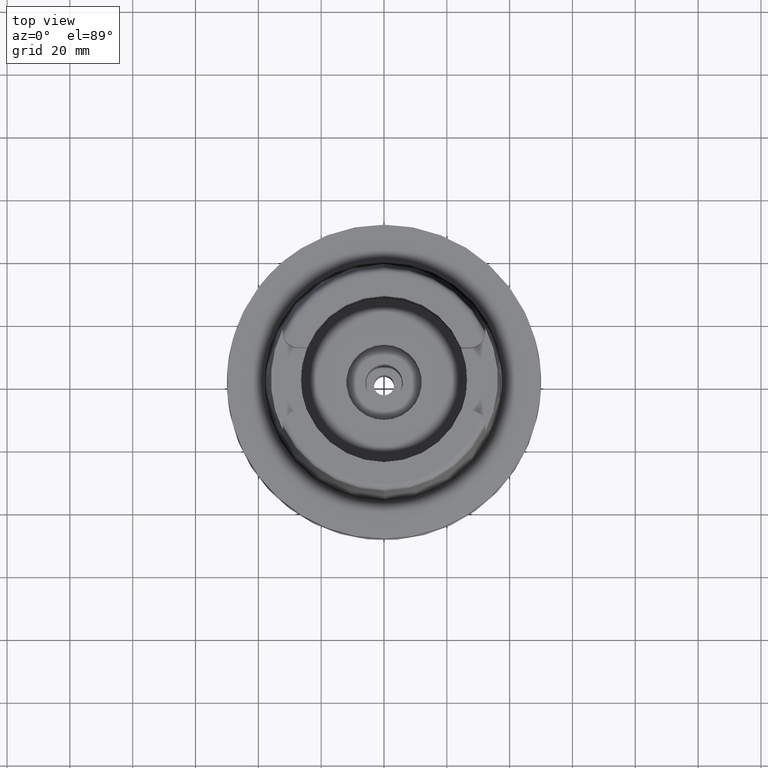
[diagram: clean part render]
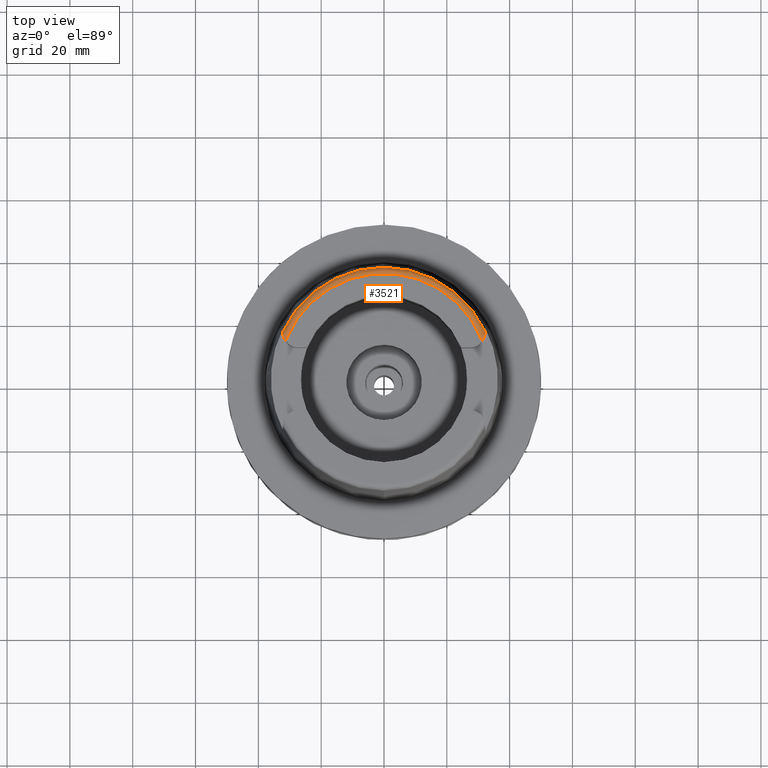
[diagram: same view with one face highlighted and labeled with its STEP entity id]
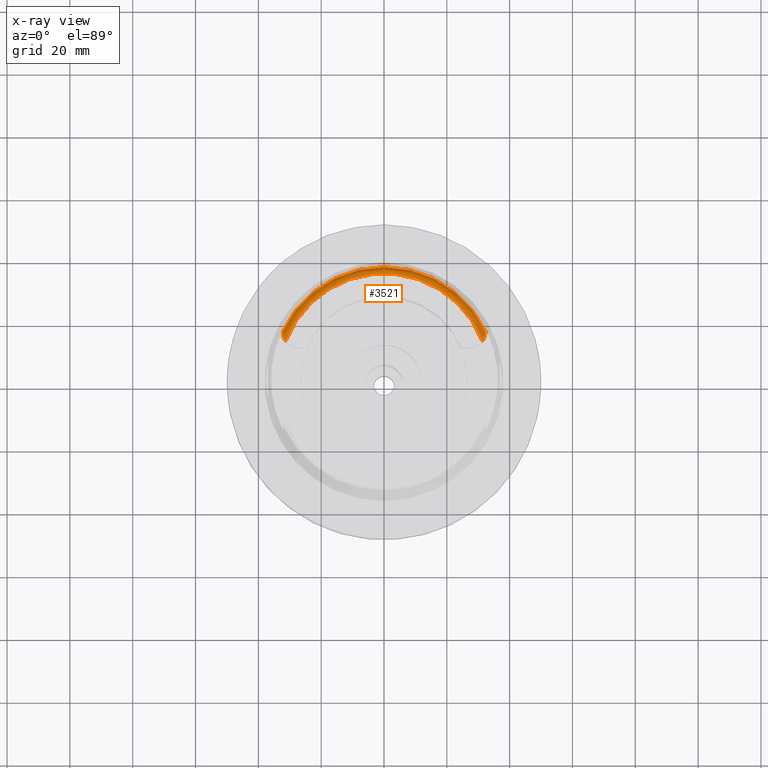
[diagram: x-ray of the same camera — body ghosted, the highlighted face saturated]
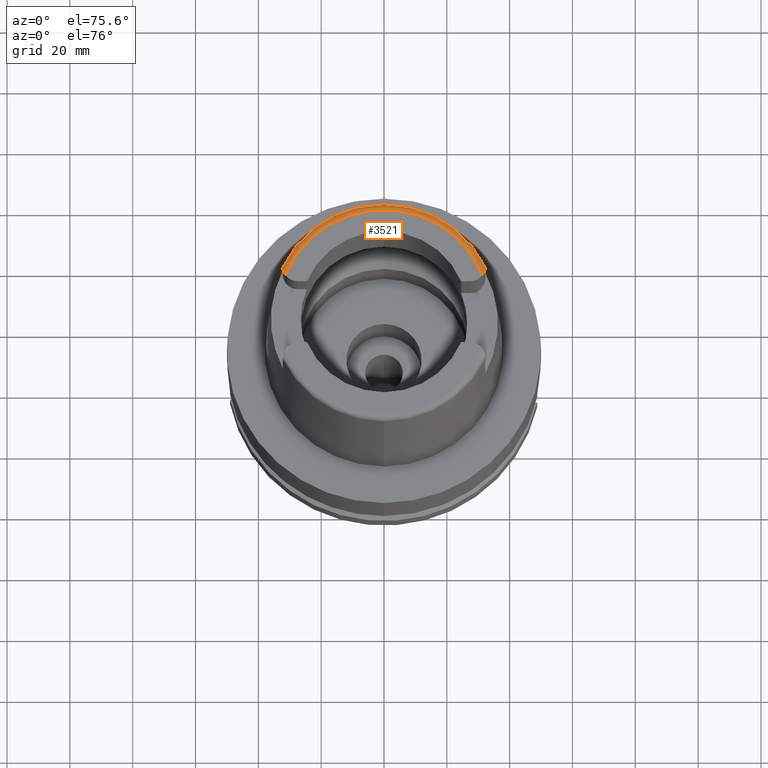
[diagram: same view with one face highlighted and labeled with its STEP entity id]
A machine part, top view. The second image highlights one B-rep face of the part: STEP entity #3521.
The next image is the same camera in x-ray: the body ghosted, the highlighted face saturated — about 0% of this face is hidden behind the body in this view.
A second angle (auxiliary view) of the same face is appended — the face is thin or edge-on in the first view.
In plain terms, the highlighted toroidal blend (fillet) surface has major radius 33.5974 mm and minor (blend) radius 2 mm.
Its self-contained STEP definition (entity closure, byte-faithful):
#14 = CARTESIAN_POINT ( 'NONE',  ( 32.15017720449324656, 13.90751976771936782, 49.39676178602020684 ) ) ;
#40 = DIRECTION ( 'NONE',  ( 0.0000000000000000000, 0.0000000000000000000, -1.000000000000000000 ) ) ;
#95 = CARTESIAN_POINT ( 'NONE',  ( 32.24916103442960491, 14.77253395964151927, 48.70381746494810926 ) ) ;
#115 = CARTESIAN_POINT ( 'NONE',  ( -32.25000136840999687, 15.06443227475000057, 48.09991928346000378 ) ) ;
#156 = CARTESIAN_POINT ( 'NONE',  ( -32.22448865000264107, 14.39095980605708114, 49.06284178539175400 ) ) ;
#242 = CARTESIAN_POINT ( 'NONE',  ( -32.09777971927447027, 13.68052568832561100, 49.52495681024776530 ) ) ;
#413 = CARTESIAN_POINT ( 'NONE',  ( 32.20669148451036534, 14.23088006493673774, 49.18704784447752587 ) ) ;
#443 = CARTESIAN_POINT ( 'NONE',  ( 32.16832596347117601, 13.99875704715564773, 49.34121435958346780 ) ) ;
#492 = CARTESIAN_POINT ( 'NONE',  ( 32.21993036972644120, 14.33954684682620950, 49.10608170110517534 ) ) ;
#576 = CARTESIAN_POINT ( 'NONE',  ( -32.14588499017791889, 13.87874634931243811, 49.41605215450951505 ) ) ;
#625 = CARTESIAN_POINT ( 'NONE',  ( 32.12274057746510891, 13.78269737179117449, 49.46904536526865570 ) ) ;
#627 = CARTESIAN_POINT ( 'NONE',  ( -31.84734691394621464, 12.94726093084390683, 49.84228404415687663 ) ) ;
#759 = B_SPLINE_CURVE_WITH_KNOTS ( 'NONE', 3,
 ( #3981, #1842, #2266, #115 ),
 .UNSPECIFIED., .F., .F.,
 ( 4, 4 ),
 ( 0.0000000000000000000, 1.000000000000000000 ),
 .UNSPECIFIED. ) ;
#818 = ORIENTED_EDGE ( 'NONE', *, *, #1297, .F. ) ;
#892 = CARTESIAN_POINT ( 'NONE',  ( 0.0000000000000000000, 0.0000000000000000000, 50.00000000000000000 ) ) ;
#1000 = CARTESIAN_POINT ( 'NONE',  ( 32.11939418327478535, 13.76840275363858268, 49.47705317395351443 ) ) ;
#1005 = CARTESIAN_POINT ( 'NONE',  ( -32.25000136840999687, 15.06443227475000057, 48.09991928346000378 ) ) ;
#1024 = CARTESIAN_POINT ( 'NONE',  ( -32.21878722870468437, 14.33830843859515447, 49.10428175090957836 ) ) ;
#1055 = CARTESIAN_POINT ( 'NONE',  ( -32.10664234831729402, 13.71571364279806637, 49.50604449910613170 ) ) ;
#1066 = VERTEX_POINT ( 'NONE', #3856 ) ;
#1080 = CARTESIAN_POINT ( 'NONE',  ( -31.98608371368483816, 13.30679759932256623, 49.70456327665627327 ) ) ;
#1104 = CARTESIAN_POINT ( 'NONE',  ( -32.04996175303573835, 13.50367662822789860, 49.61586521801842764 ) ) ;
#1195 = AXIS2_PLACEMENT_3D ( 'NONE', #5172, #4694, #3391 ) ;
#1278 = CARTESIAN_POINT ( 'NONE',  ( 32.17890963888950040, 14.05801803728754429, 49.30331987844354558 ) ) ;
#1297 = EDGE_CURVE ( 'NONE', #3736, #3889, #4362, .T. ) ;
#1318 = AXIS2_PLACEMENT_3D ( 'NONE', #1600, #2098, #4220 ) ;
#1345 = EDGE_CURVE ( 'NONE', #2486, #1066, #2220, .T. ) ;
#1377 = TOROIDAL_SURFACE ( 'NONE', #1195, 33.59743838135999994, 2.000000000000000000 ) ;
#1448 = CARTESIAN_POINT ( 'NONE',  ( 32.07040011085826592, 13.57460039597133594, 49.58093307470007716 ) ) ;
#1450 = CARTESIAN_POINT ( 'NONE',  ( -32.25000000000000711, 14.78351991466574944, 48.70328559115783662 ) ) ;
#1476 = CARTESIAN_POINT ( 'NONE',  ( -31.52519813468604326, 12.31381119535605428, 50.00000000000002842 ) ) ;
#1485 = CIRCLE ( 'NONE', #4191, 35.59494289391000166 ) ;
#1531 = CARTESIAN_POINT ( 'NONE',  ( 32.00398671331425504, 13.35999235542739427, 49.68128246879137322 ) ) ;
#1574 = CARTESIAN_POINT ( 'NONE',  ( 32.25000000000000000, 15.04645007517336630, 48.25212983203287109 ) ) ;
#1600 = CARTESIAN_POINT ( 'NONE',  ( 0.0000000000000000000, 0.0000000000000000000, 48.09987853799000135 ) ) ;
#1701 = FACE_OUTER_BOUND ( 'NONE', #5275, .T. ) ;
#1736 = CARTESIAN_POINT ( 'NONE',  ( 32.14053432310057445, 13.86131506583278217, 49.42421192542029473 ) ) ;
#1842 = CARTESIAN_POINT ( 'NONE',  ( -32.25000000000000000, 14.98831011539436275, 48.40078052529398889 ) ) ;
#1846 = CARTESIAN_POINT ( 'NONE',  ( 32.01568327388960711, 13.39588381632287195, 49.66516246172209748 ) ) ;
#1853 = ORIENTED_EDGE ( 'NONE', *, *, #3958, .F. ) ;
#1878 = CARTESIAN_POINT ( 'NONE',  ( -32.24707187857641344, 14.63389837967115170, 48.86153619287532734 ) ) ;
#2033 = AXIS2_PLACEMENT_3D ( 'NONE', #892, #40, #3085 ) ;
#2098 = DIRECTION ( 'NONE',  ( 0.0000000000000000000, 0.0000000000000000000, -1.000000000000000000 ) ) ;
#2220 = CIRCLE ( 'NONE', #1318, 35.59494289391000166 ) ;
#2257 = CARTESIAN_POINT ( 'NONE',  ( -31.35385269249000473, 12.07161079256999869, 50.00000000000000000 ) ) ;
#2266 = CARTESIAN_POINT ( 'NONE',  ( -32.25000000000000000, 15.04645420697769431, 48.25208730704065374 ) ) ;
#2272 = CARTESIAN_POINT ( 'NONE',  ( -31.97902504986931760, 13.28634825390971841, 49.71331469848107076 ) ) ;
#2299 = CARTESIAN_POINT ( 'NONE',  ( -32.19753087073275566, 14.17392538189759854, 49.22534626495601628 ) ) ;
#2379 = CARTESIAN_POINT ( 'NONE',  ( -32.20547308974386880, 14.22999839403326838, 49.18564250344191890 ) ) ;
#2424 = CARTESIAN_POINT ( 'NONE',  ( 32.25000000000000000, 14.89000000000000057, 48.54599893821999501 ) ) ;
#2486 = VERTEX_POINT ( 'NONE', #1005 ) ;
#2605 = ORIENTED_EDGE ( 'NONE', *, *, #1345, .F. ) ;
#2678 = B_SPLINE_CURVE_WITH_KNOTS ( 'NONE', 3,
 ( #4854, #3491, #95, #3538, #5221, #3457, #4734, #5269, #2689, #492, #413, #1278, #443, #14, #1736, #5407, #625, #1000, #3252, #1448, #3223, #1846, #1531, #3617, #4877, #2769, #5353, #3167, #4900 ),
 .UNSPECIFIED., .F., .F.,
 ( 4, 2, 2, 2, 2, 2, 2, 1, 2, 2, 1, 1, 2, 2, 2, 4 ),
 ( 0.0000000000000000000, 0.1250000000000017208, 0.1875000000000060507, 0.2187500000000075495, 0.2500000000000089928, 0.3750000000000140443, 0.4375000000000161537, 0.4687500000000166533, 0.4843750000000175415, 0.5000000000000184297, 0.5625000000000220934, 0.5937500000000222045, 0.6093750000000224265, 0.6250000000000226485, 0.7500000000000155431, 1.000000000000000000 ),
 .UNSPECIFIED. ) ;
#2689 = CARTESIAN_POINT ( 'NONE',  ( 32.23166681622142704, 14.46662401802180398, 49.00055970431263574 ) ) ;
#2769 = CARTESIAN_POINT ( 'NONE',  ( 31.88014065795848850, 13.01950502716140079, 49.82005538784619603 ) ) ;
#2780 = CARTESIAN_POINT ( 'NONE',  ( 32.24997259532460703, 15.06456604366454854, 48.09965181409399548 ) ) ;
#2794 = CARTESIAN_POINT ( 'NONE',  ( -32.21567298039627048, 14.31155043656645098, 49.12478470816802201 ) ) ;
#2952 = VERTEX_POINT ( 'NONE', #4395 ) ;
#2958 = DIRECTION ( 'NONE',  ( 0.0000000000000000000, 1.000000000000000000, 0.0000000000000000000 ) ) ;
#2981 = EDGE_CURVE ( 'NONE', #3889, #2486, #759, .T. ) ;
#3010 = DIRECTION ( 'NONE',  ( 0.0000000000000000000, 0.0000000000000000000, -1.000000000000000000 ) ) ;
#3085 = DIRECTION ( 'NONE',  ( -0.9332215253017949186, 0.3593015233941980191, 0.0000000000000000000 ) ) ;
#3167 = CARTESIAN_POINT ( 'NONE',  ( 31.52507307882964582, 12.31363442626083149, 50.00000000000001421 ) ) ;
#3170 = CARTESIAN_POINT ( 'NONE',  ( -31.94497839944808604, 13.19092874366464940, 49.75292495902216672 ) ) ;
#3196 = CARTESIAN_POINT ( 'NONE',  ( -31.89458821769278174, 13.05862407527183144, 49.80433522532489121 ) ) ;
#3202 = CIRCLE ( 'NONE', #2033, 33.59743838135999994 ) ;
#3223 = CARTESIAN_POINT ( 'NONE',  ( 32.03286044953435407, 13.44965304002909434, 49.64063122353667268 ) ) ;
#3252 = CARTESIAN_POINT ( 'NONE',  ( 32.09833716051594621, 13.68068798269276698, 49.52554850186197655 ) ) ;
#3254 = CARTESIAN_POINT ( 'NONE',  ( -31.35385269249000473, 12.07161079256999869, 50.00000000000000000 ) ) ;
#3391 = DIRECTION ( 'NONE',  ( -0.0004184165975219878483, -0.9999999124637716230, 0.0000000000000000000 ) ) ;
#3457 = CARTESIAN_POINT ( 'NONE',  ( 32.23860582797592400, 14.55602964915842712, 48.92207617525394880 ) ) ;
#3491 = CARTESIAN_POINT ( 'NONE',  ( 32.25000000000000711, 14.83666302572071594, 48.62478544684702086 ) ) ;
#3521 = ADVANCED_FACE ( 'NONE', ( #1701 ), #1377, .T. ) ;
#3538 = CARTESIAN_POINT ( 'NONE',  ( 32.24473325681892533, 14.66026462506382266, 48.82273375631090317 ) ) ;
#3617 = CARTESIAN_POINT ( 'NONE',  ( 31.99843468176250738, 13.34326006148294219, 49.68868765479610516 ) ) ;
#3651 = ORIENTED_EDGE ( 'NONE', *, *, #4578, .T. ) ;
#3736 = VERTEX_POINT ( 'NONE', #2257 ) ;
#3856 = CARTESIAN_POINT ( 'NONE',  ( 0.0000000000000000000, 35.59494289391000166, 48.09987853799000135 ) ) ;
#3889 = VERTEX_POINT ( 'NONE', #4192 ) ;
#3952 = CARTESIAN_POINT ( 'NONE',  ( 31.35385269249000473, 12.07161079256999869, 50.00000000000000000 ) ) ;
#3954 = B_SPLINE_CURVE_WITH_KNOTS ( 'NONE', 3,
 ( #2780, #1574, #4609, #2424 ),
 .UNSPECIFIED., .F., .F.,
 ( 4, 4 ),
 ( 0.0000000000000000000, 1.000000000000000000 ),
 .UNSPECIFIED. ) ;
#3958 = EDGE_CURVE ( 'NONE', #5437, #4747, #2678, .T. ) ;
#3981 = CARTESIAN_POINT ( 'NONE',  ( -32.25000000000000000, 14.89000000000000057, 48.54599893821999501 ) ) ;
#4021 = CARTESIAN_POINT ( 'NONE',  ( -32.16972359007059623, 14.00077442389878257, 49.34185324349260782 ) ) ;
#4191 = AXIS2_PLACEMENT_3D ( 'NONE', #5174, #3010, #2958 ) ;
#4192 = CARTESIAN_POINT ( 'NONE',  ( -32.25000000000000000, 14.89000000000000057, 48.54599893821999501 ) ) ;
#4220 = DIRECTION ( 'NONE',  ( -0.9060276961631030801, 0.4232183996300014628, 0.0000000000000000000 ) ) ;
#4237 = ORIENTED_EDGE ( 'NONE', *, *, #5246, .F. ) ;
#4255 = ORIENTED_EDGE ( 'NONE', *, *, #2981, .F. ) ;
#4362 = B_SPLINE_CURVE_WITH_KNOTS ( 'NONE', 3,
 ( #3254, #1476, #4880, #627, #3196, #3170, #4903, #2272, #1080, #4937, #1104, #5332, #242, #1055, #4450, #576, #4021, #2299, #2379, #2794, #1024, #156, #4537, #1878, #1450, #4427 ),
 .UNSPECIFIED., .F., .F.,
 ( 4, 2, 1, 1, 2, 2, 1, 1, 2, 2, 2, 2, 2, 2, 4 ),
 ( 0.0000000000000000000, 0.2499999999999971134, 0.3124999999999962808, 0.3437499999999963918, 0.3593749999999955591, 0.3749999999999947264, 0.4374999999999920064, 0.4687499999999907296, 0.4843749999999918399, 0.4999999999999930056, 0.6249999999999970024, 0.6874999999999970024, 0.7187499999999967804, 0.7499999999999965583, 1.000000000000000000 ),
 .UNSPECIFIED. ) ;
#4395 = CARTESIAN_POINT ( 'NONE',  ( 32.24997259532460703, 15.06456604366454854, 48.09965181409399548 ) ) ;
#4427 = CARTESIAN_POINT ( 'NONE',  ( -32.25000000000000000, 14.89000000000000057, 48.54599893821999501 ) ) ;
#4450 = CARTESIAN_POINT ( 'NONE',  ( -32.11133123733506523, 13.73481664300941674, 49.49561947039513399 ) ) ;
#4537 = CARTESIAN_POINT ( 'NONE',  ( -32.22721464802273772, 14.41836001907463682, 49.04065256218467539 ) ) ;
#4578 = EDGE_CURVE ( 'NONE', #3736, #4747, #3202, .T. ) ;
#4609 = CARTESIAN_POINT ( 'NONE',  ( 32.25000000000000000, 14.98827123477505729, 48.40083795764833496 ) ) ;
#4694 = DIRECTION ( 'NONE',  ( 0.0000000000000000000, 0.0000000000000000000, 1.000000000000000000 ) ) ;
#4734 = CARTESIAN_POINT ( 'NONE',  ( 32.23704981615065179, 14.53398797795061093, 48.94197227885843660 ) ) ;
#4747 = VERTEX_POINT ( 'NONE', #3952 ) ;
#4826 = CARTESIAN_POINT ( 'NONE',  ( 32.25000000000000000, 14.89000000000000057, 48.54599893821999501 ) ) ;
#4854 = CARTESIAN_POINT ( 'NONE',  ( 32.25000000000000000, 14.89000000000000057, 48.54599893821999501 ) ) ;
#4877 = CARTESIAN_POINT ( 'NONE',  ( 31.93981075802885528, 13.17023250305935100, 49.76395999614340582 ) ) ;
#4880 = CARTESIAN_POINT ( 'NONE',  ( -31.68119417275402228, 12.58098885598217187, 49.95518649867863559 ) ) ;
#4900 = CARTESIAN_POINT ( 'NONE',  ( 31.35385269249000473, 12.07161079256999869, 50.00000000000000000 ) ) ;
#4903 = CARTESIAN_POINT ( 'NONE',  ( -31.96554476381336585, 13.24811719149971090, 49.72936270682128423 ) ) ;
#4937 = CARTESIAN_POINT ( 'NONE',  ( -32.01645752931433009, 13.39649020077079200, 49.66553154253200830 ) ) ;
#5118 = EDGE_CURVE ( 'NONE', #1066, #2952, #1485, .T. ) ;
#5171 = ORIENTED_EDGE ( 'NONE', *, *, #5118, .F. ) ;
#5172 = CARTESIAN_POINT ( 'NONE',  ( 0.0000000000000000000, 0.0000000000000000000, 48.00000000000000000 ) ) ;
#5174 = CARTESIAN_POINT ( 'NONE',  ( 0.0000000000000000000, 0.0000000000000000000, 48.09987853799000135 ) ) ;
#5221 = CARTESIAN_POINT ( 'NONE',  ( 32.24272244423228528, 14.62016376217319369, 48.86243389746701382 ) ) ;
#5246 = EDGE_CURVE ( 'NONE', #2952, #5437, #3954, .T. ) ;
#5269 = CARTESIAN_POINT ( 'NONE',  ( 32.23351567616357016, 14.48858532606921656, 48.98179517475157496 ) ) ;
#5275 = EDGE_LOOP ( 'NONE', ( #3651, #1853, #4237, #5171, #2605, #4255, #818 ) ) ;
#5332 = CARTESIAN_POINT ( 'NONE',  ( -32.08414977382889788, 13.62765255118404539, 49.55297174651465042 ) ) ;
#5353 = CARTESIAN_POINT ( 'NONE',  ( 31.68132763052894418, 12.58137814829357737, 49.95501384696155611 ) ) ;
#5407 = CARTESIAN_POINT ( 'NONE',  ( 32.12998297748749366, 13.81425646125548568, 49.45117670409295840 ) ) ;
#5437 = VERTEX_POINT ( 'NONE', #4826 ) ;